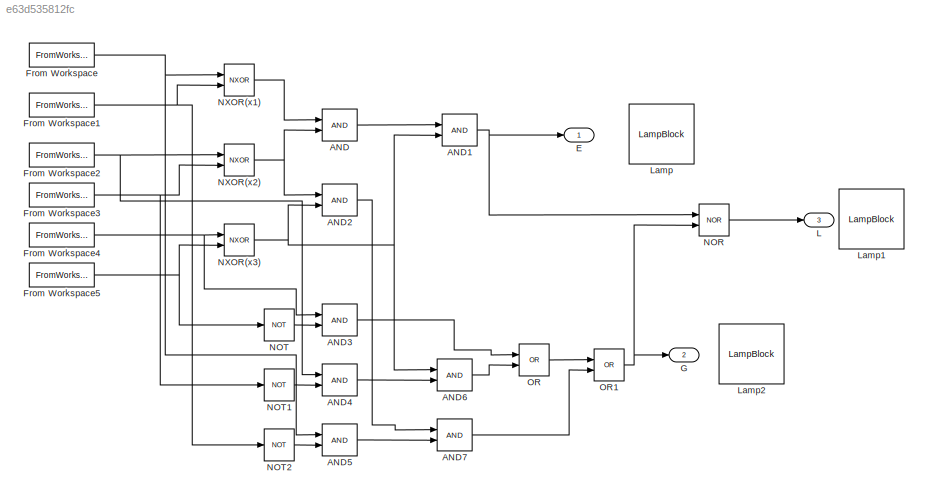
MODEL slx_e63d535812fc
KIND model
CONFIG AbsTol = auto
CONFIG EnableMultiTasking = off
CONFIG FixedStep = auto
CONFIG MaxStep = auto
CONFIG MinStep = auto
CONFIG RelTol = 1e-3
CONFIG SampleTimeConstraint = Unconstrained
CONFIG SolverName = VariableStepAuto
CONFIG StartTime = 0.0
CONFIG StopTime = 10.0
BLOCK [Logic] AND
  AllPortsSameDT = off
  IconShape = distinctive
  OutDataTypeStr = boolean
  Ports = [2, 1]
BLOCK [Logic] AND1
  AllPortsSameDT = off
  IconShape = distinctive
  OutDataTypeStr = boolean
  Ports = [2, 1]
BLOCK [Logic] AND2
  AllPortsSameDT = off
  IconShape = distinctive
  OutDataTypeStr = boolean
  Ports = [2, 1]
BLOCK [Logic] AND3
  AllPortsSameDT = off
  IconShape = distinctive
  OutDataTypeStr = boolean
  Ports = [2, 1]
BLOCK [Logic] AND4
  AllPortsSameDT = off
  IconShape = distinctive
  OutDataTypeStr = boolean
  Ports = [2, 1]
BLOCK [Logic] AND5
  AllPortsSameDT = off
  IconShape = distinctive
  OutDataTypeStr = boolean
  Ports = [2, 1]
BLOCK [Logic] AND6
  AllPortsSameDT = off
  IconShape = distinctive
  OutDataTypeStr = boolean
  Ports = [2, 1]
BLOCK [Logic] AND7
  AllPortsSameDT = off
  IconShape = distinctive
  OutDataTypeStr = boolean
  Ports = [2, 1]
BLOCK [Outport] E
BLOCK [FromWorkspace] From Workspace
  VariableName = num1_bit1
BLOCK [FromWorkspace] From Workspace1
  VariableName = num2_bit1
BLOCK [FromWorkspace] From Workspace2
  VariableName = num1_bit2
BLOCK [FromWorkspace] From Workspace3
  VariableName = num2_bit2
BLOCK [FromWorkspace] From Workspace4
  VariableName = num1_bit3
BLOCK [FromWorkspace] From Workspace5
  VariableName = num2_bit3
BLOCK [Outport] G
  Port = 2
BLOCK [Outport] L
  Port = 3
BLOCK [LampBlock] Lamp
  LabelPosition = Hide
BLOCK [LampBlock] Lamp1
  LabelPosition = Hide
BLOCK [LampBlock] Lamp2
  LabelPosition = Hide
BLOCK [Logic] NOR
  AllPortsSameDT = off
  IconShape = distinctive
  Operator = NOR
  OutDataTypeStr = boolean
  Ports = [2, 1]
BLOCK [Logic] NOT
  AllPortsSameDT = off
  IconShape = distinctive
  Operator = NOT
  OutDataTypeStr = boolean
  Ports = [1, 1]
BLOCK [Logic] NOT1
  AllPortsSameDT = off
  IconShape = distinctive
  Operator = NOT
  OutDataTypeStr = boolean
  Ports = [1, 1]
BLOCK [Logic] NOT2
  AllPortsSameDT = off
  IconShape = distinctive
  Operator = NOT
  OutDataTypeStr = boolean
  Ports = [1, 1]
BLOCK [Logic] NXOR(x1)
  AllPortsSameDT = off
  IconShape = distinctive
  Operator = NXOR
  OutDataTypeStr = boolean
  Ports = [2, 1]
BLOCK [Logic] NXOR(x2)
  AllPortsSameDT = off
  IconShape = distinctive
  Operator = NXOR
  OutDataTypeStr = boolean
  Ports = [2, 1]
BLOCK [Logic] NXOR(x3)
  AllPortsSameDT = off
  IconShape = distinctive
  Operator = NXOR
  OutDataTypeStr = boolean
  Ports = [2, 1]
BLOCK [Logic] OR
  AllPortsSameDT = off
  IconShape = distinctive
  Operator = OR
  OutDataTypeStr = boolean
  Ports = [2, 1]
BLOCK [Logic] OR1
  AllPortsSameDT = off
  IconShape = distinctive
  Operator = OR
  OutDataTypeStr = boolean
  Ports = [2, 1]
NET AND1:1 -> E:1, NOR:1
LINE AND2:1 -> AND7:1
LINE AND3:1 -> OR:1
LINE AND4:1 -> AND6:2
LINE AND5:1 -> AND7:2
LINE AND6:1 -> OR:2
LINE AND7:1 -> OR1:2
LINE AND:1 -> AND1:1
NET From Workspace1:1 -> NOT2:1, NXOR(x1):2
NET From Workspace2:1 -> AND4:1, NXOR(x2):1
NET From Workspace3:1 -> NOT1:1, NXOR(x2):2
NET From Workspace4:1 -> AND3:1, NXOR(x3):1
NET From Workspace5:1 -> NOT:1, NXOR(x3):2
NET From Workspace:1 -> AND5:1, NXOR(x1):1
LINE NOR:1 -> L:1
LINE NOT1:1 -> AND4:2
LINE NOT2:1 -> AND5:2
LINE NOT:1 -> AND3:2
LINE NXOR(x1):1 -> AND:1
NET NXOR(x2):1 -> AND2:1, AND:2
NET NXOR(x3):1 -> AND1:2, AND2:2, AND6:1
NET OR1:1 -> G:1, NOR:2
LINE OR:1 -> OR1:1
note: NET lines group one-source signal fan-out (src -> all destinations, sorted); 1:1 wires keep LINE
